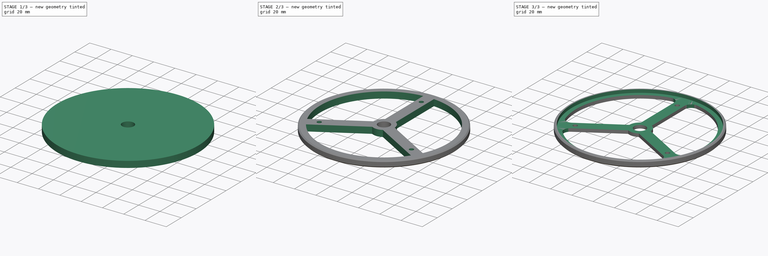
[diagram: build sequence overview — one tinted view per stage of 3, left to right]
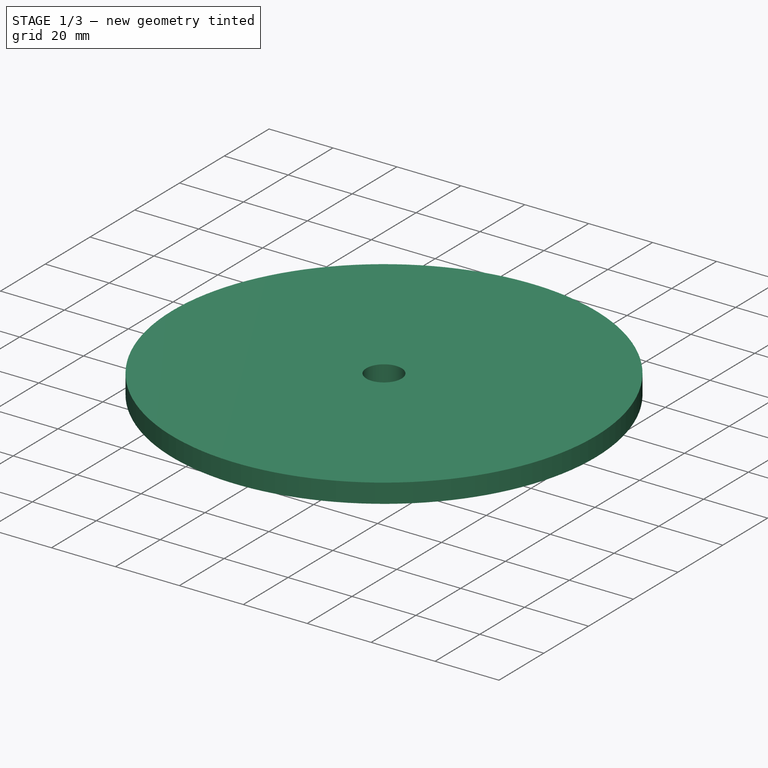
[diagram: stage 1 of 3 — iso view after this stage's code; geometry added in this stage tinted green]
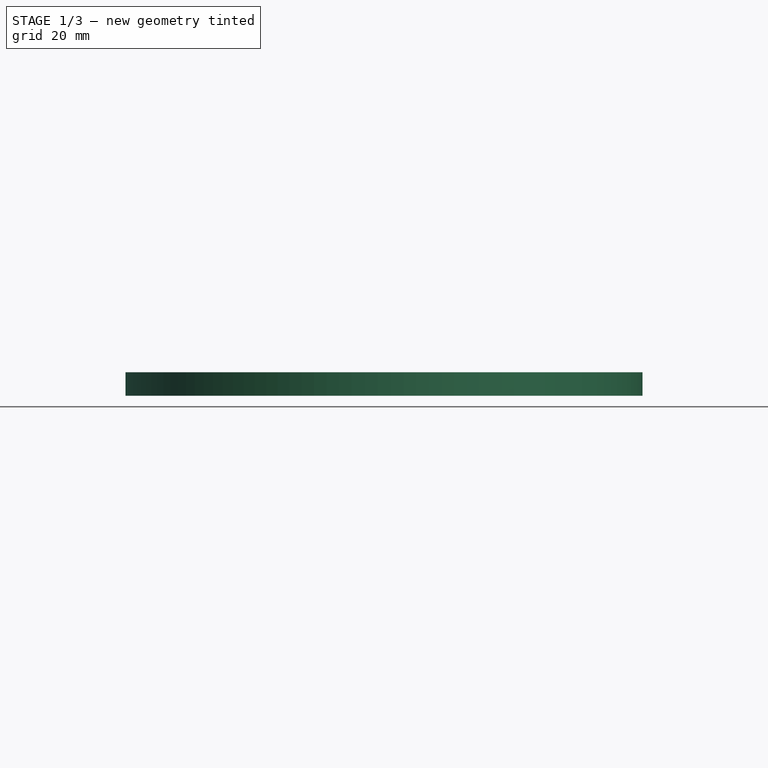
[diagram: stage 1 of 3 — front view after this stage's code; geometry added in this stage tinted green]
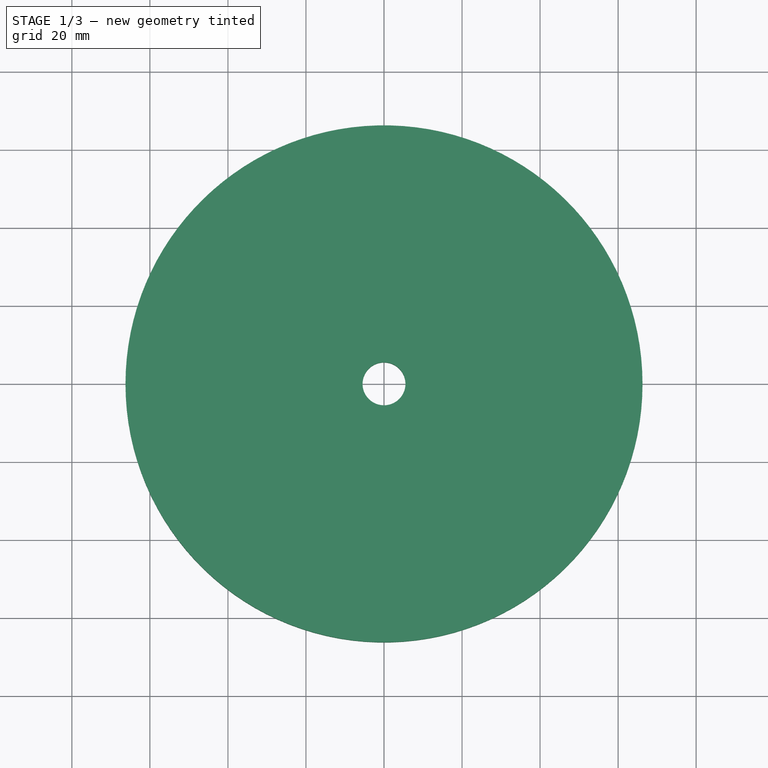
[diagram: stage 1 of 3 — top view after this stage's code; geometry added in this stage tinted green]
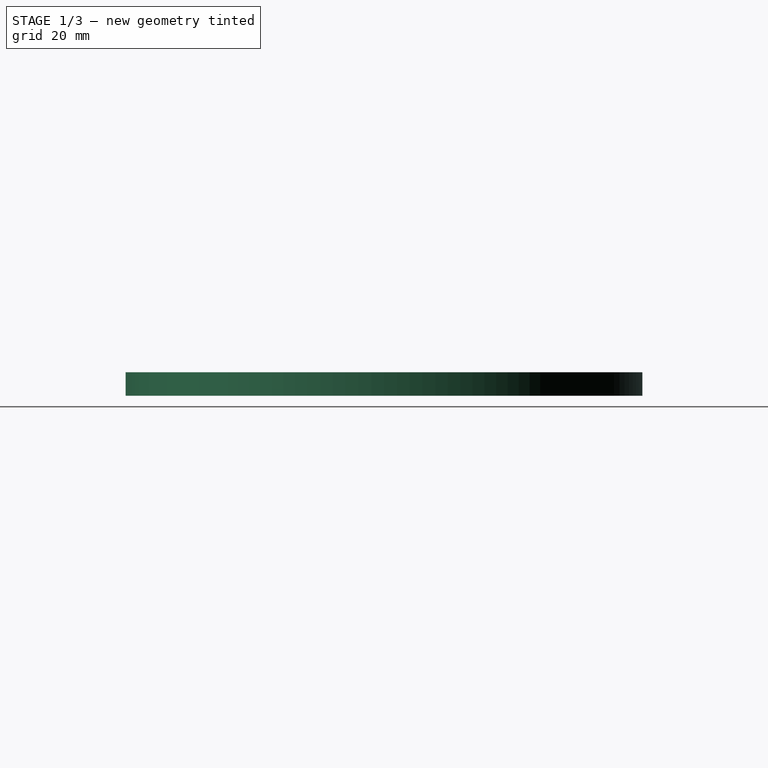
[diagram: stage 1 of 3 — right view after this stage's code; geometry added in this stage tinted green]
FCSTD DOCUMENT  (FreeCAD 2020.10.16R22739 +2665 (Git))
Label: piasta-lozyska2
License: All rights reserved
LicenseURL: http://en.wikipedia.org/wiki/All_rights_reserved
objects: Sketcher::SketchObject×4, PartDesign::Pocket×3, PartDesign::Pad×1, PartDesign::PolarPattern×1, PartDesign::Chamfer×1, PartDesign::Fillet×1, PartDesign::Body×1
note: 25 computed .brp shape members not serialized (recipe doc carries the construction recipe); baked Part::Feature solids carry a one-line shape summary decoded from their .brp

FEATURE [Sketcher::SketchObject] Sketch
  MapMode = 5
  Support = -> [XY_Plane]
  sketch-geometry (1):
    g0: Circle CenterX=0 CenterY=0 CenterZ=0 NormalX=0 NormalY=0 NormalZ=1 AngleXU=0 Radius=66.25
  constraints (2):
    c: Coincident(g0,g-1)
    c: Diameter(g0) = 132.5
FEATURE [PartDesign::Pad] Pad
  ClaimChildren = false
  Direction = (1,1,1)
  Length = 6
  Length2 = 100
  NewSolid = false
  Profile = -> Sketch
  Suppress = false
  Type = 0
FEATURE [Sketcher::SketchObject] Sketch001
  MapMode = 5
  Support = -> [XY_Plane]
  sketch-geometry (1):
    g0: Circle CenterX=0 CenterY=0 CenterZ=0 NormalX=0 NormalY=0 NormalZ=1 AngleXU=0 Radius=5.5
  constraints (2):
    c: Coincident(g0,g-1)
    c: Diameter(g0) = 11
FEATURE [PartDesign::Pocket] Pocket
  BaseFeature = -> Pad
  ClaimChildren = false
  Length = 5
  Length2 = 100
  NewSolid = false
  Profile = -> Sketch001
  Reversed = true
  Suppress = false
  Type = 1
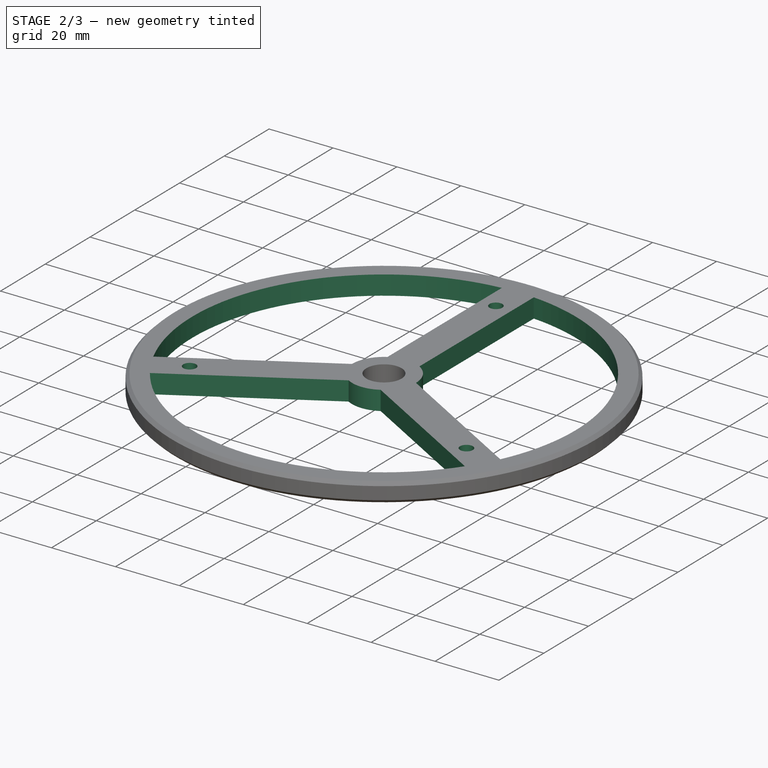
[diagram: stage 2 of 3 — iso view after this stage's code; geometry added in this stage tinted green]
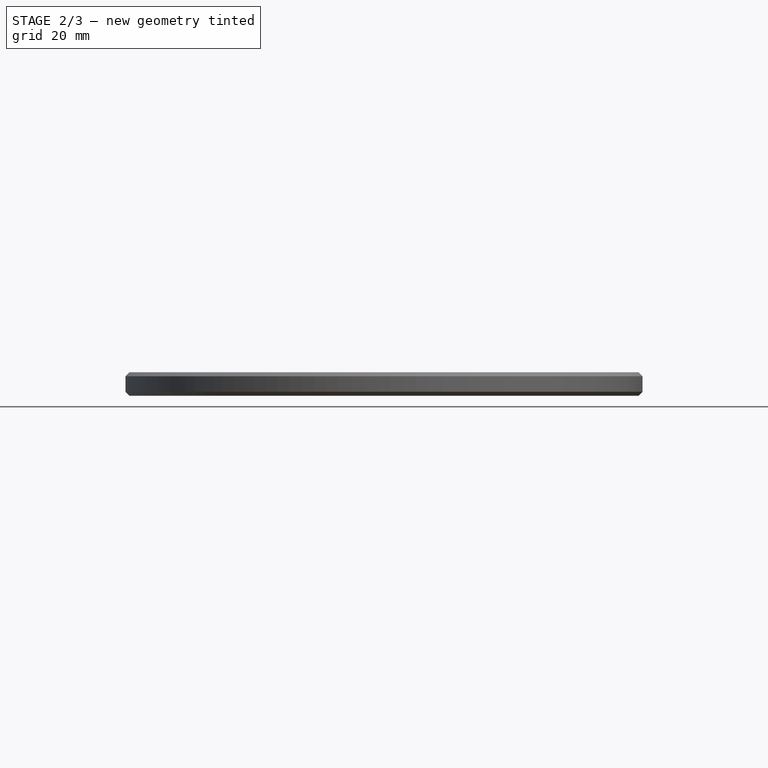
[diagram: stage 2 of 3 — front view after this stage's code; geometry added in this stage tinted green]
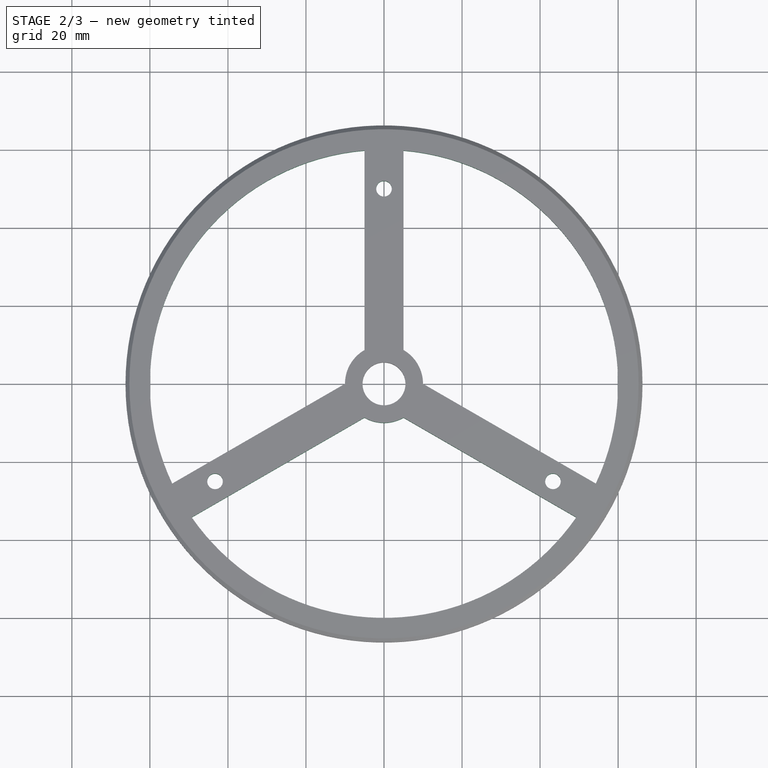
[diagram: stage 2 of 3 — top view after this stage's code; geometry added in this stage tinted green]
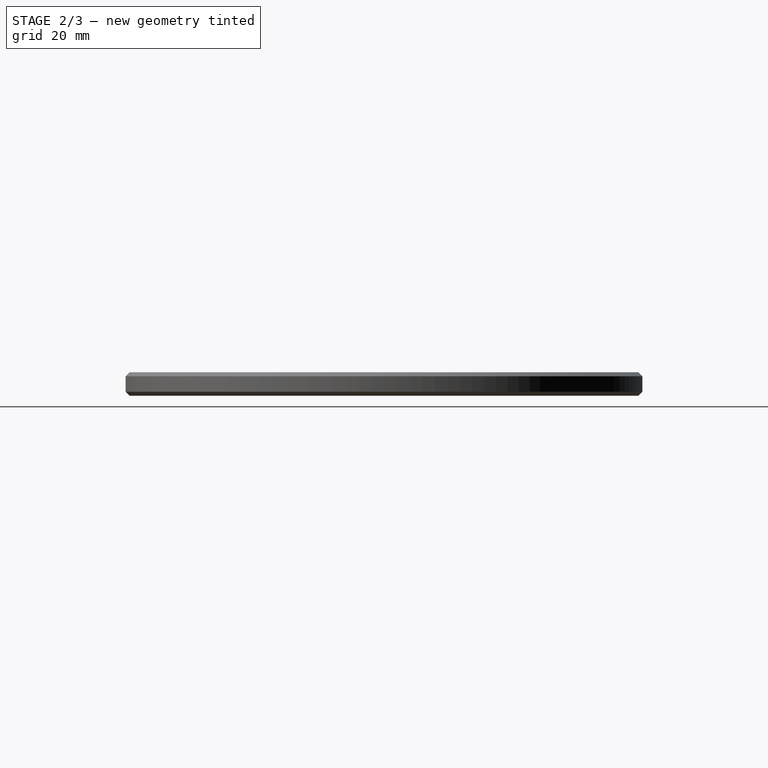
[diagram: stage 2 of 3 — right view after this stage's code; geometry added in this stage tinted green]
FEATURE [Sketcher::SketchObject] Sketch002
  MapMode = 5
  Support = -> [XY_Plane]
  sketch-geometry (7):
    g0: ArcOfCircle CenterX=0 CenterY=0 CenterZ=0 NormalX=0 NormalY=0 NormalZ=1 AngleXU=0 Radius=60 StartAngle=1.65423 EndAngle=3.58176
    g1: ArcOfCircle CenterX=0 CenterY=0 CenterZ=0 NormalX=0 NormalY=0 NormalZ=1 AngleXU=0 Radius=10 StartAngle=2.0944 EndAngle=3.14159
    g2: LineSegment StartX=-5 StartY=8.66025 StartZ=0 EndX=-5 EndY=59.7913 EndZ=0
    g3: LineSegment [constr] StartX=0 StartY=0 StartZ=0 EndX=-86.6025 EndY=-50 EndZ=0
    g4: LineSegment StartX=-10 StartY=-1e-16 StartZ=0 EndX=-54.2808 EndY=-25.5655 EndZ=0
    g5: LineSegment [constr] StartX=-10 StartY=-1e-16 StartZ=0 EndX=0 EndY=0 EndZ=0
    g6: Circle CenterX=0 CenterY=50 CenterZ=0 NormalX=0 NormalY=0 NormalZ=1 AngleXU=0 Radius=2
  constraints (20):
    c: Coincident(g0,g-1)
    c: Coincident(g1,g0)
    c: Vertical(g2)
    c: Coincident(g3,g0)
    c: Angle(g3) = -2.61799
    c: Parallel(g4,g3)
    c: Diameter(g0) = 120
    c: Coincident(g5,g4)
    c: Coincident(g5,g0)
    c: Coincident(g0,g2)
    c: Coincident(g0,g4)
    c: Coincident(g1,g2)
    c: DistanceX(g1) = -5
    c: Diameter(g1) = 20
    c: Distance(g1,g3) = 5
    c: Coincident(g4,g1)
    c: Distance(g3) = 100
    c: PointOnObject(g6,g-2)
    c: Diameter(g6) = 4
    c: DistanceY(g6) = 50
FEATURE [PartDesign::Pocket] Pocket001
  BaseFeature = -> Pocket
  ClaimChildren = false
  Length = 5
  Length2 = 100
  NewSolid = false
  Profile = -> Sketch002
  Reversed = true
  Suppress = false
  Type = 1
FEATURE [PartDesign::PolarPattern] PolarPattern
  Angle = 360
  Axis = -> Sketch002 [N_Axis]
  BaseFeature = -> Pocket001
  CopyShape = false
  NewSolid = false
  Occurrences = 3
  OriginalSubs = -> [Pocket001]
  Originals = -> [Pocket001]
  SubTransform = true
  Suppress = false
FEATURE [PartDesign::Chamfer] Chamfer
  Angle = 45
  Base = -> PolarPattern [Edge3,Edge2]
  BaseFeature = -> PolarPattern
  ChamferType = 0
  FlipDirection = false
  NewSolid = false
  Size = 1
  Size2 = 1
  SupportTransform = true
  Suppress = false
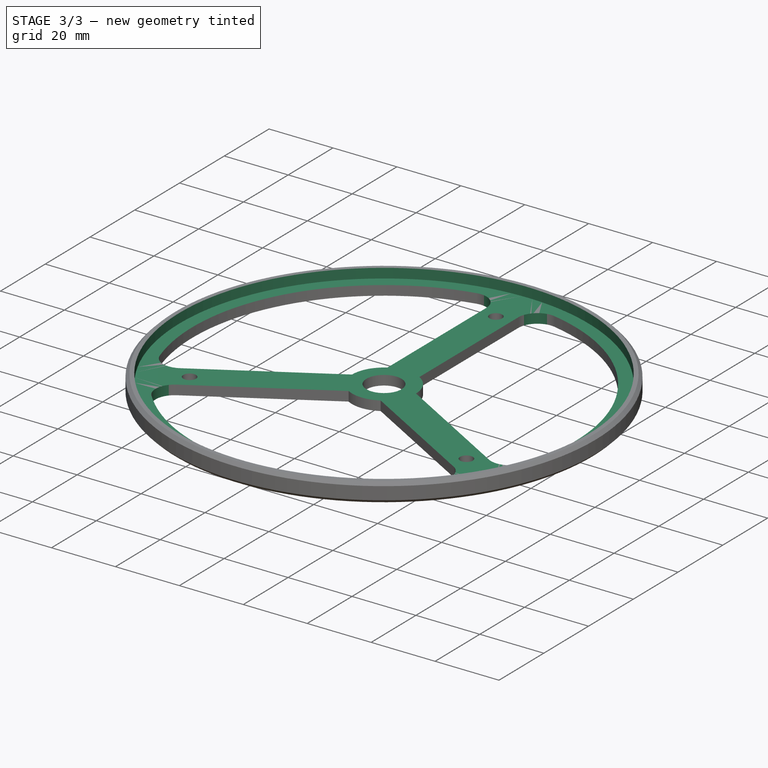
[diagram: stage 3 of 3 — iso view after this stage's code; geometry added in this stage tinted green]
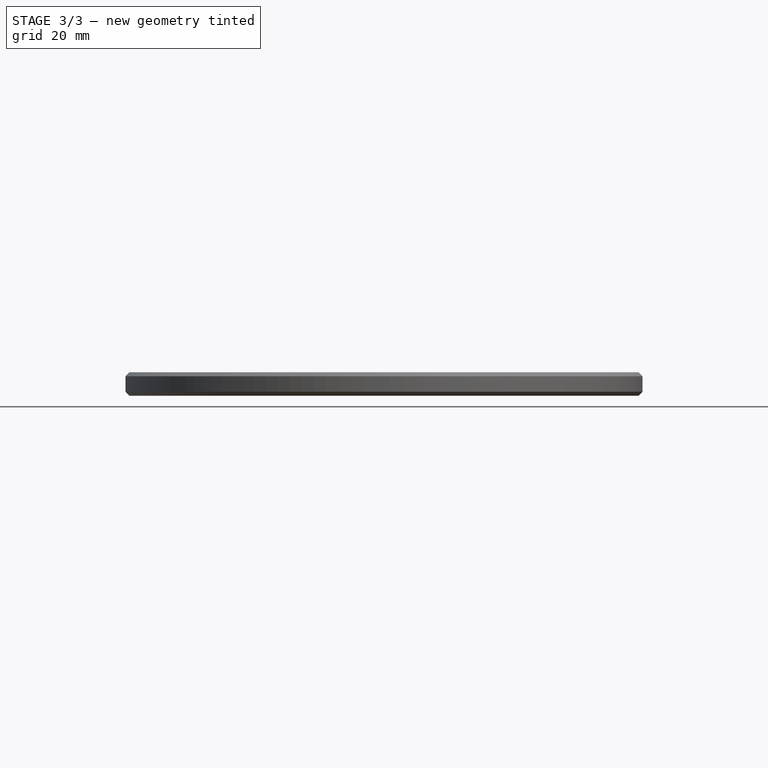
[diagram: stage 3 of 3 — front view after this stage's code; geometry added in this stage tinted green]
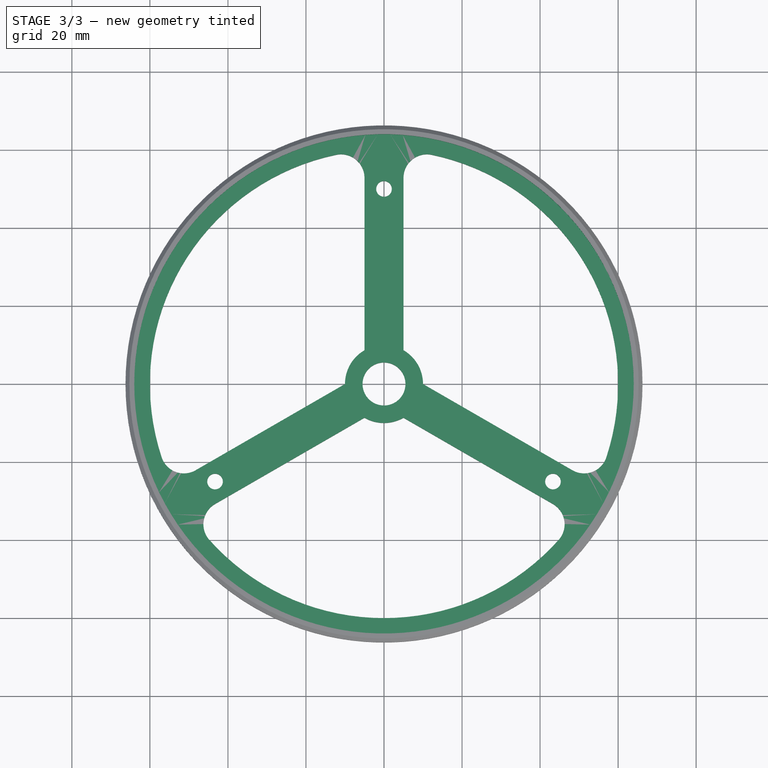
[diagram: stage 3 of 3 — top view after this stage's code; geometry added in this stage tinted green]
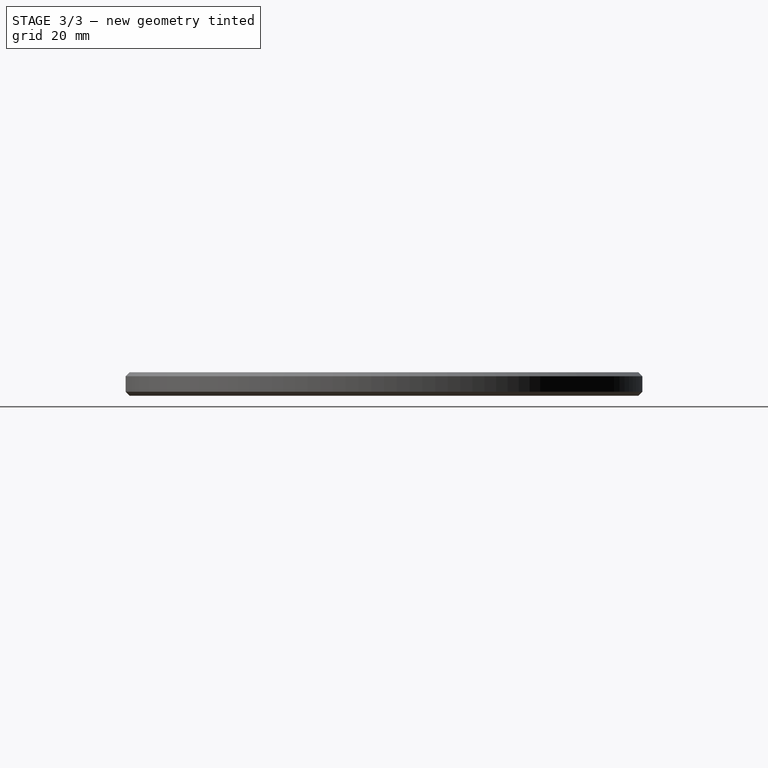
[diagram: stage 3 of 3 — right view after this stage's code; geometry added in this stage tinted green]
FEATURE [PartDesign::Fillet] Fillet
  Base = -> Chamfer [Edge49,Edge46,Edge54,Edge52,Edge42,Edge40]
  BaseFeature = -> Chamfer
  NewSolid = false
  Radius = 6
  SupportTransform = true
  Suppress = false
FEATURE [Sketcher::SketchObject] Sketch003
  MapMode = 5
  Placement = pos=(0,0,6) rot=(0,0,1;0rad)
  Support = -> [Fillet]
  sketch-geometry (1):
    g0: Circle CenterX=0 CenterY=0 CenterZ=0 NormalX=0 NormalY=0 NormalZ=1 AngleXU=0 Radius=64
  constraints (2):
    c: Coincident(g0,g-1)
    c: Diameter(g0) = 128
FEATURE [PartDesign::Pocket] Pocket002
  BaseFeature = -> Fillet
  ClaimChildren = false
  Length = 3
  Length2 = 100
  NewSolid = false
  Profile = -> Sketch003
  Suppress = false
  Type = 0
FEATURE [PartDesign::Body] Body  label="piasta-lozyska2"
  ExportMode = 0
  Group = -> [Sketch,Pad,Sketch001,Pocket,Sketch002,Pocket001,PolarPattern,Chamfer,Fillet,Sketch003,Pocket002]
  Origin = -> Origin
  Tip = -> Pocket002
  _ExportChildren = -> [Pad,Pocket,Pocket001,PolarPattern,Chamfer,Fillet,Pocket002]
  _GroupVersion = 1
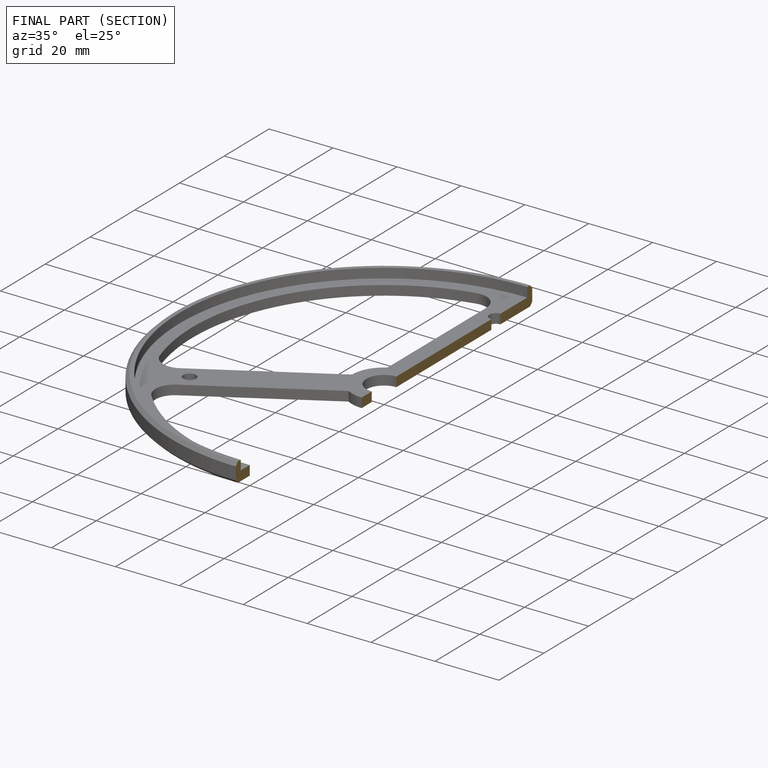
[diagram: finished part — half-section view (interior)]
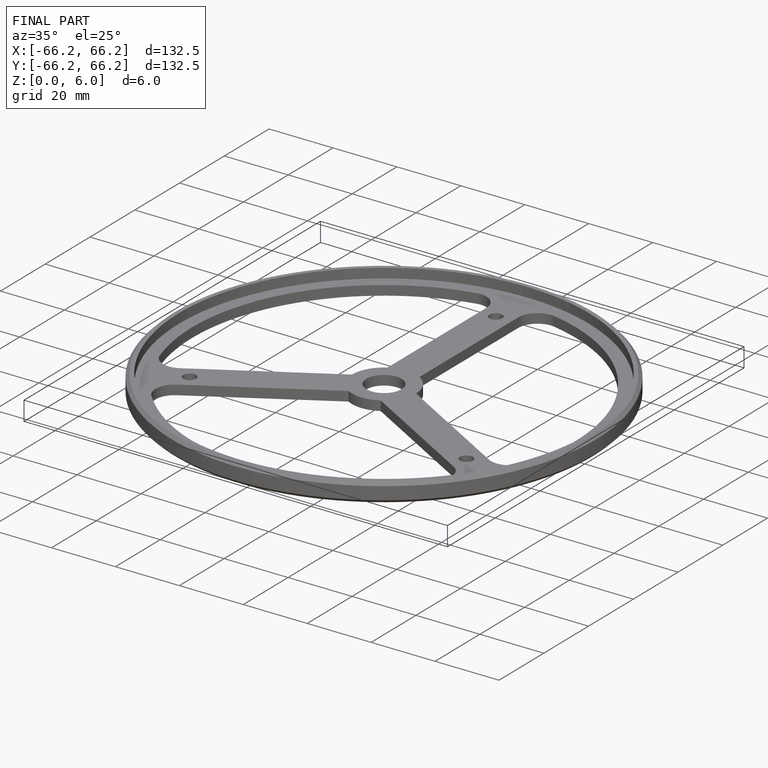
[diagram: finished part — iso view with bounding-box wireframe]
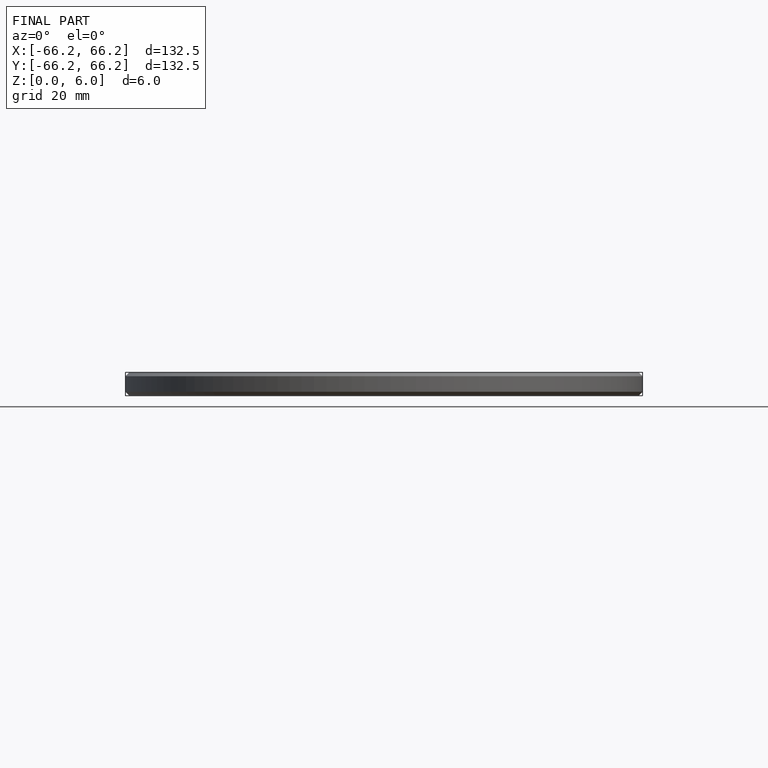
[diagram: finished part — front view with bounding-box wireframe]
